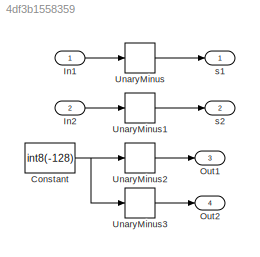
MODEL slx_4df3b1558359
KIND model
CONFIG AbsTol = auto
CONFIG EnableMultiTasking = on
CONFIG FixedStep = 0.200000
CONFIG MaxStep = auto
CONFIG MinStep = auto
CONFIG RelTol = 1e-3
CONFIG SampleTimeConstraint = Unconstrained
CONFIG Solver = FixedStepDiscrete
CONFIG SolverName = FixedStepDiscrete
CONFIG StartTime = 0.0
CONFIG StopTime = 10.0
WORKSPACE source: MAT-file member
WORKSPACE already_pp = 0
BLOCK [Constant] Constant
  Value = int8(-128)
BLOCK [Inport] In1
  IconDisplay = Port number
  OutDataTypeStr = int8
  PortDimensions = 1
BLOCK [Inport] In2
  IconDisplay = Port number
  OutDataTypeStr = double
  Port = 2
  PortDimensions = 1
BLOCK [Outport] Out1
  IconDisplay = Port number
  Port = 3
BLOCK [Outport] Out2
  IconDisplay = Port number
  Port = 4
BLOCK [UnaryMinus] UnaryMinus
  SaturateOnIntegerOverflow = on
BLOCK [UnaryMinus] UnaryMinus1
BLOCK [UnaryMinus] UnaryMinus2
  SaturateOnIntegerOverflow = on
BLOCK [UnaryMinus] UnaryMinus3
BLOCK [Outport] s1
  IconDisplay = Port number
BLOCK [Outport] s2
  IconDisplay = Port number
  Port = 2
NET Constant:1 -> UnaryMinus2:1, UnaryMinus3:1
LINE In1:1 -> UnaryMinus:1
LINE In2:1 -> UnaryMinus1:1
LINE UnaryMinus1:1 -> s2:1
LINE UnaryMinus2:1 -> Out1:1
LINE UnaryMinus3:1 -> Out2:1
LINE UnaryMinus:1 -> s1:1
note: NET lines group one-source signal fan-out (src -> all destinations, sorted); 1:1 wires keep LINE
